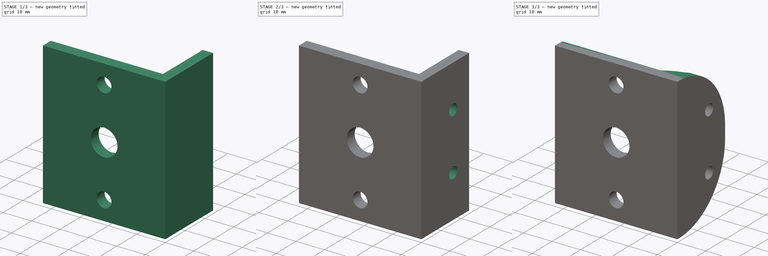
[diagram: build sequence overview — one tinted view per stage of 3, left to right]
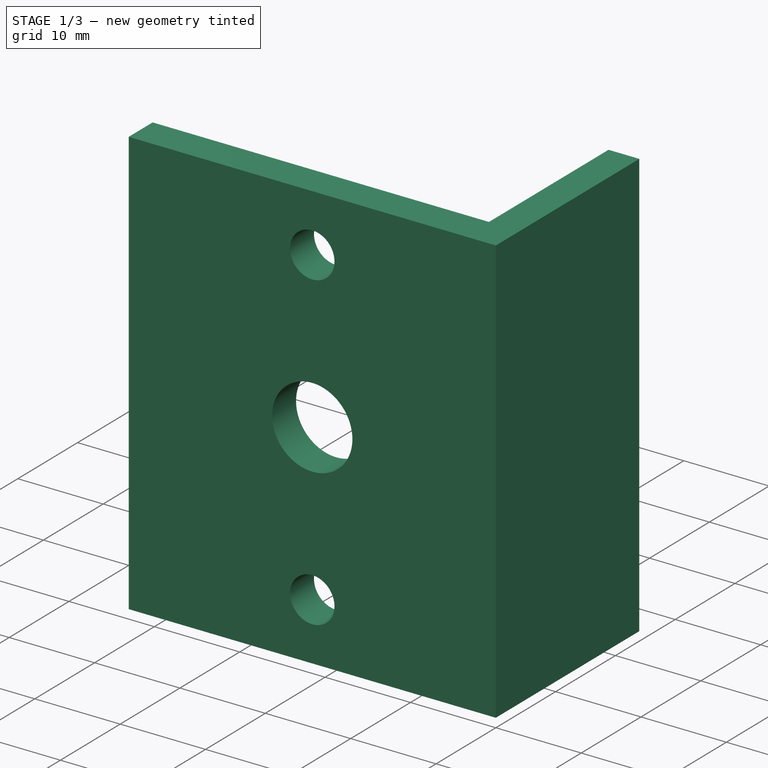
[diagram: stage 1 of 3 — iso view after this stage's code; geometry added in this stage tinted green]
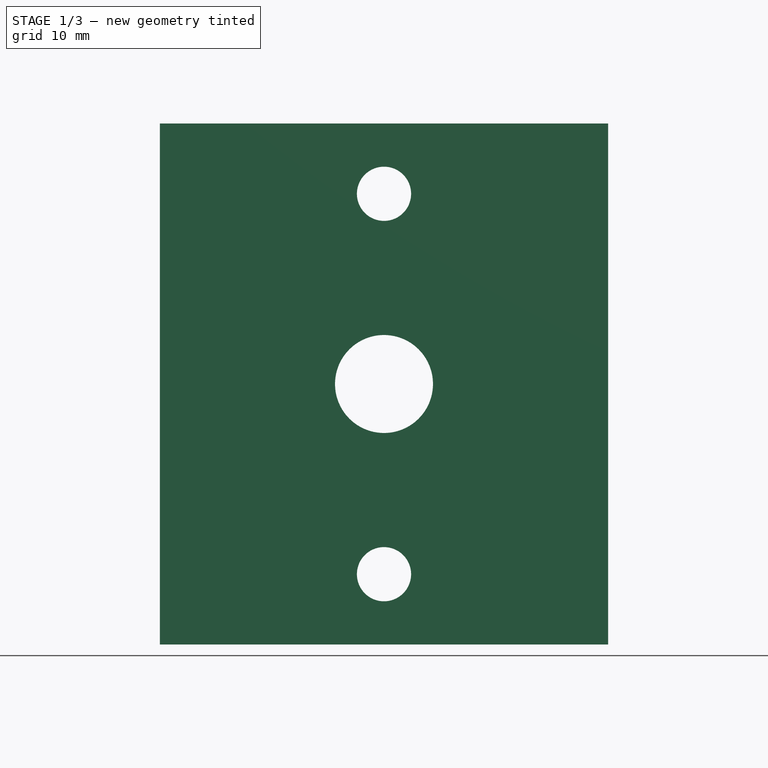
[diagram: stage 1 of 3 — front view after this stage's code; geometry added in this stage tinted green]
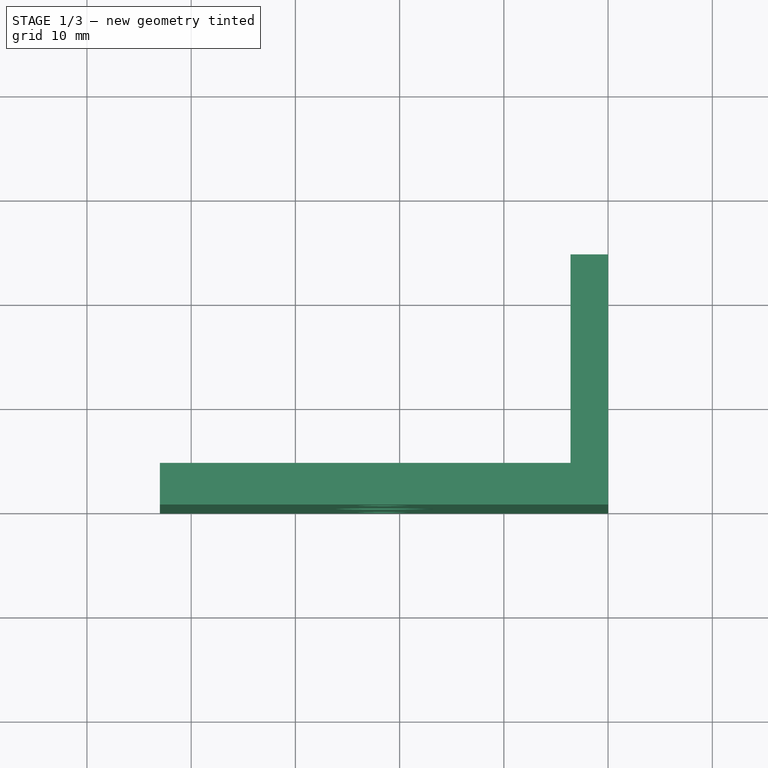
[diagram: stage 1 of 3 — top view after this stage's code; geometry added in this stage tinted green]
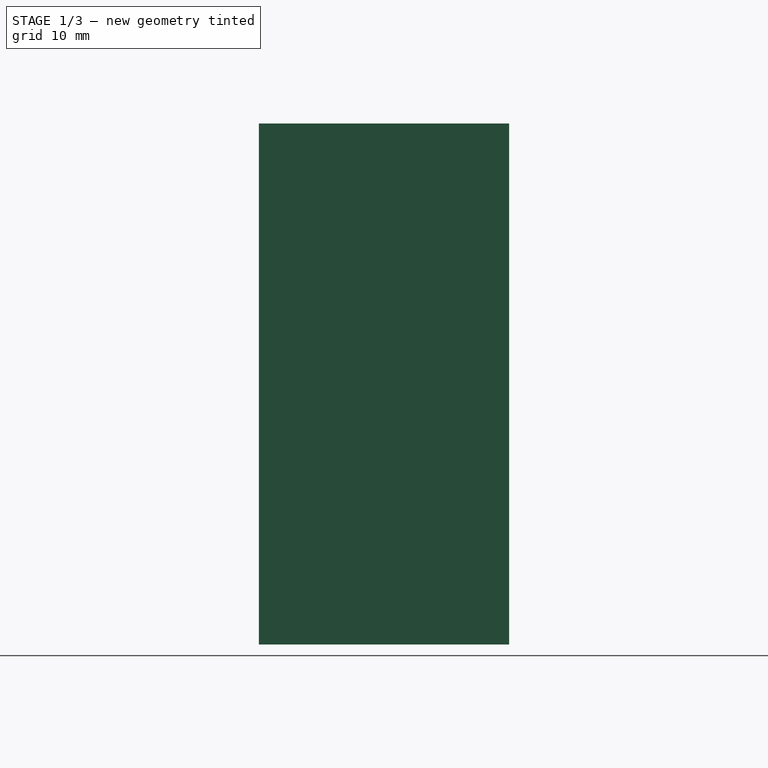
[diagram: stage 1 of 3 — right view after this stage's code; geometry added in this stage tinted green]
FCSTD DOCUMENT  (FreeCAD 0.16R6706 (Git))
Label: Suporte Mancal Lateral 
License: All rights reserved
LicenseURL: http://en.wikipedia.org/wiki/All_rights_reserved
objects: Sketcher::SketchObject×3, PartDesign::Pocket×2, PartDesign::Pad×1, PartDesign::Chamfer×1, PartDesign::Fillet×1
note: 11 computed .brp shape members not serialized (recipe doc carries the construction recipe); baked Part::Feature solids carry a one-line shape summary decoded from their .brp

FEATURE [Sketcher::SketchObject] Sketch003  label="sk Lateral"
  sketch-geometry (6):
    g0: LineSegment StartX=-43 StartY=4 StartZ=0 EndX=-3.6 EndY=4 EndZ=0
    g1: LineSegment StartX=-3.6 StartY=4 StartZ=0 EndX=-3.6 EndY=24 EndZ=0
    g2: LineSegment StartX=-3.6 StartY=24 StartZ=0 EndX=0 EndY=24 EndZ=0
    g3: LineSegment StartX=0 StartY=24 StartZ=0 EndX=0 EndY=0 EndZ=0
    g4: LineSegment StartX=0 StartY=0 StartZ=0 EndX=-43 EndY=0 EndZ=0
    g5: LineSegment StartX=-43 StartY=0 StartZ=0 EndX=-43 EndY=4 EndZ=0
  constraints (17):
    c: Coincident(g0,g1)
    c: Coincident(g1,g2)
    c: Coincident(g2,g3)
    c: Coincident(g3,g4)
    c: Coincident(g4,g5)
    c: Coincident(g0,g5)
    c: Horizontal(g0)
    c: Horizontal(g4)
    c: Horizontal(g2)
    c: Vertical(g3)
    c: Vertical(g1)
    c: Vertical(g5)
    c: DistanceX(g4,g4) = 43
    c: DistanceX(g2,g2) = 3.6
    c: DistanceY(g5,g5) = 4
    c: Coincident(g-1,g3)
    c: DistanceY(g1,g1) = 20
FEATURE [PartDesign::Pad] Pad003
  Length = 50
  Length2 = 100
  Sketch = -> Sketch003
  Type = 0
FEATURE [Sketcher::SketchObject] Sketch  label="sk Furos Mancal"
  ExternalGeometry = -> [Pad003]
  Placement = pos=(0,0,0) rot=(1,0,0;1.5708rad)
  Support = -> Pad003 [Face5]
  sketch-geometry (4):
    g0: LineSegment [constr] StartX=-21.5 StartY=6.75 StartZ=0 EndX=-21.5 EndY=43.25 EndZ=0
    g1: Circle CenterX=-21.5 CenterY=43.25 CenterZ=0 NormalX=0 NormalY=0 NormalZ=1 Radius=2.6
    g2: Circle CenterX=-21.5 CenterY=6.75 CenterZ=0 NormalX=0 NormalY=0 NormalZ=1 Radius=2.6
    g3: Circle CenterX=-21.5 CenterY=25 CenterZ=0 NormalX=0 NormalY=0 NormalZ=1 Radius=4.7
  constraints (9):
    c: Distance(g0) = 36.5
    c: Radius(g1) = 2.6
    c: Equal(g1,g2) = 2.6
    c: Coincident(g1,g0)
    c: Coincident(g2,g0)
    c: Radius(g3) = 4.7
    c: Symmetric(g0,g0,g3)
    c: Symmetric(g-3,g-4,g3)
    c: Vertical(g0)
FEATURE [PartDesign::Pocket] Pocket
  Length = 5
  Sketch = -> Sketch
  Type = 2
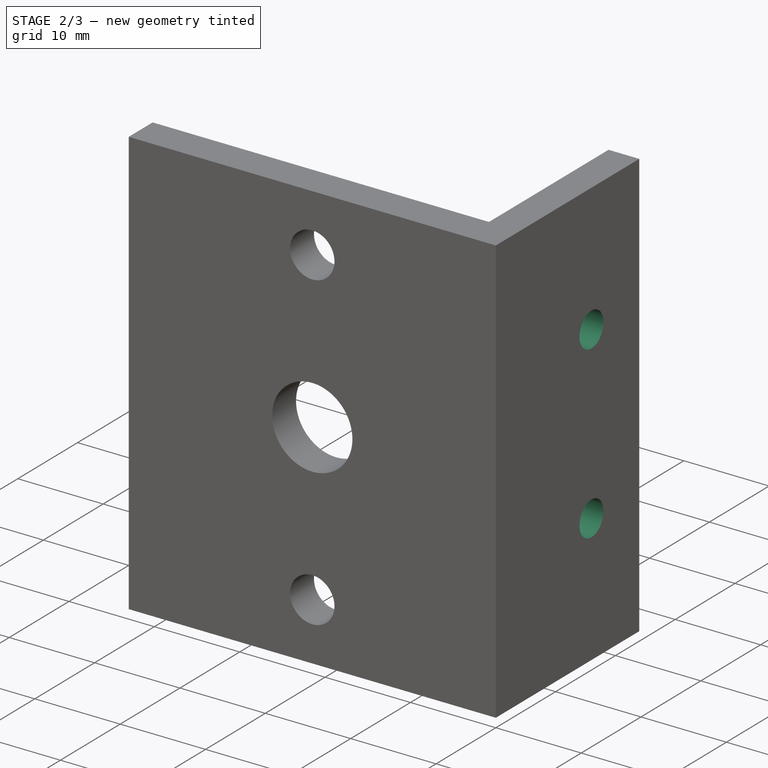
[diagram: stage 2 of 3 — iso view after this stage's code; geometry added in this stage tinted green]
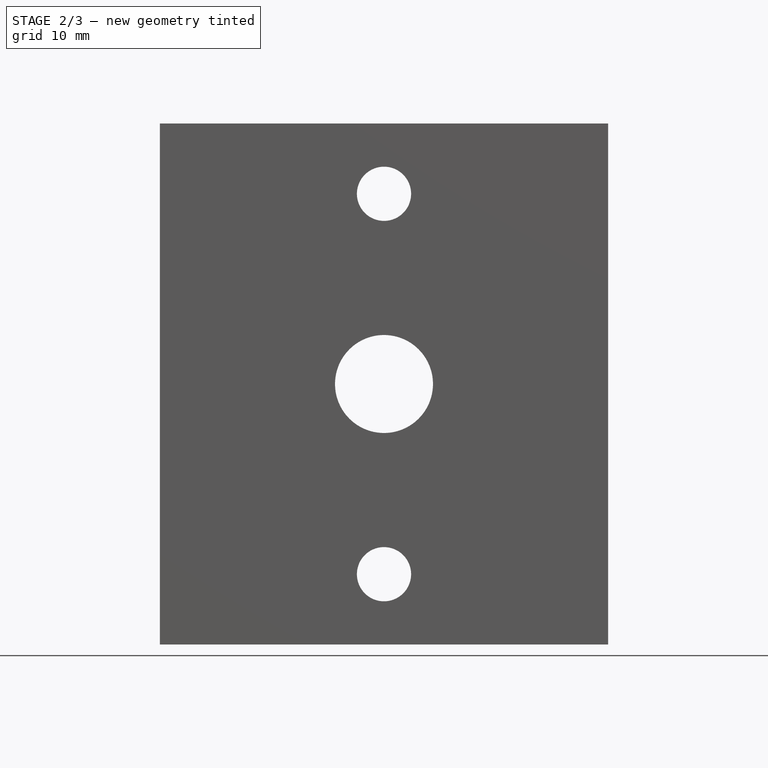
[diagram: stage 2 of 3 — front view after this stage's code; geometry added in this stage tinted green]
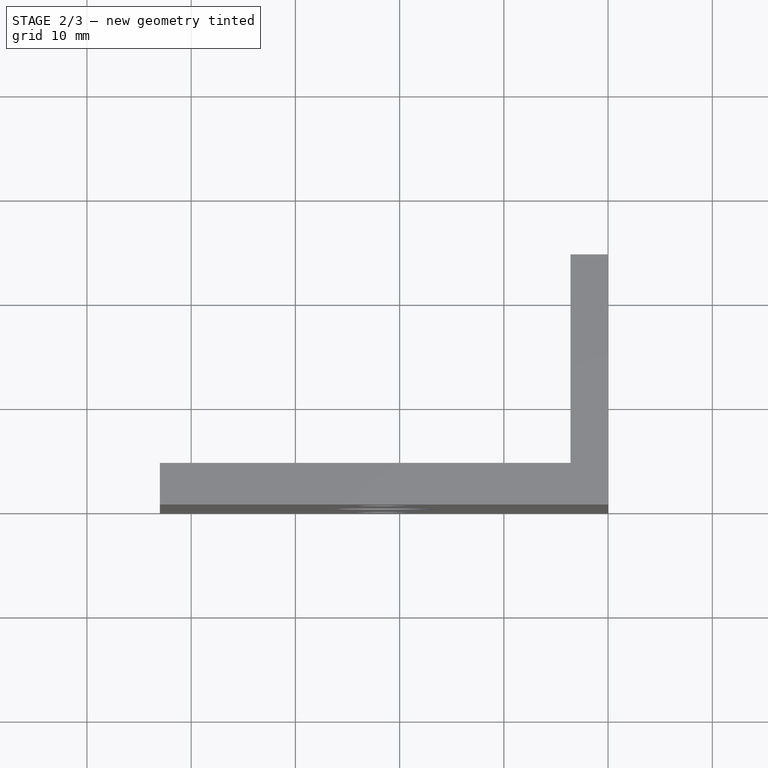
[diagram: stage 2 of 3 — top view after this stage's code; geometry added in this stage tinted green]
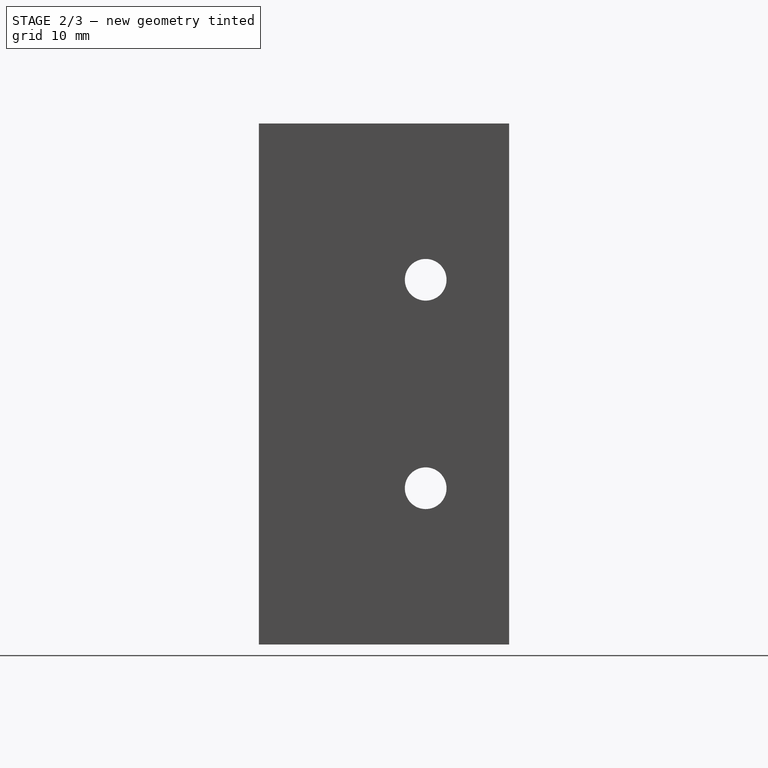
[diagram: stage 2 of 3 — right view after this stage's code; geometry added in this stage tinted green]
FEATURE [Sketcher::SketchObject] Sketch005  label="sk Furos Fixacao"
  ExternalGeometry = -> [Pocket]
  Placement = pos=(0,0,0) rot=(0.57735,0.57735,0.57735;2.0944rad)
  Support = -> Pocket [Face11]
  sketch-geometry (4):
    g0: LineSegment [constr] StartX=16 StartY=35 StartZ=0 EndX=16 EndY=15 EndZ=0
    g1: Circle CenterX=16 CenterY=35 CenterZ=0 NormalX=0 NormalY=0 NormalZ=1 Radius=2
    g2: Circle CenterX=16 CenterY=15 CenterZ=0 NormalX=0 NormalY=0 NormalZ=1 Radius=2
    g3: LineSegment [constr] StartX=16 StartY=25 StartZ=0 EndX=24 EndY=25 EndZ=0
  constraints (7):
    c: DistanceY(g0,g0) = 20
    c: Horizontal(g3)
    c: DistanceX(g3,g3) = 8
    c: Symmetric(g-5,g-5,g3)
    c: Symmetric(g0,g0,g3)
    c: Coincident(g0,g2)
    c: Coincident(g0,g1)
FEATURE [PartDesign::Pocket] Pocket001
  Length = 5
  Sketch = -> Sketch005
  Type = 2
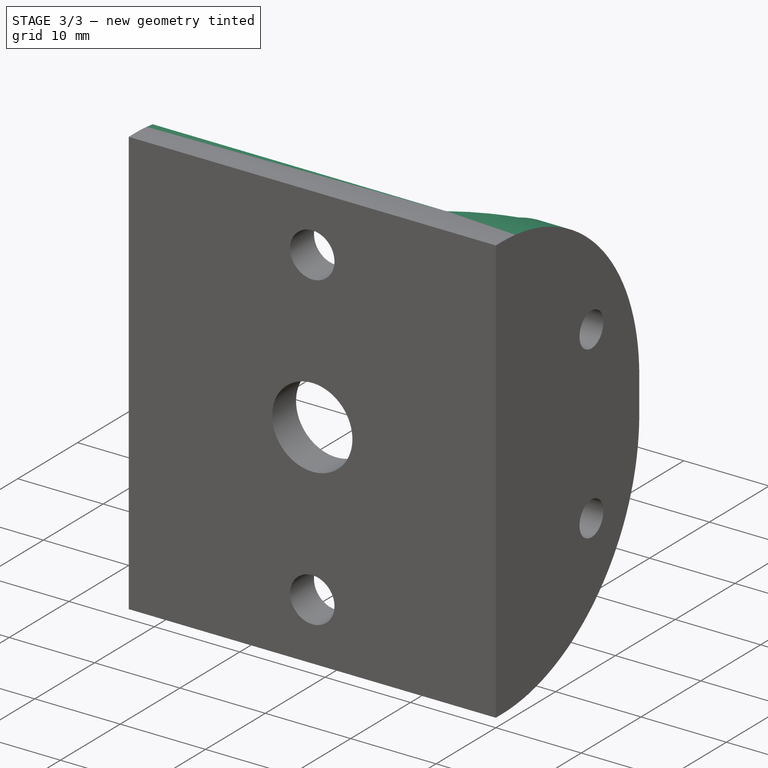
[diagram: stage 3 of 3 — iso view after this stage's code; geometry added in this stage tinted green]
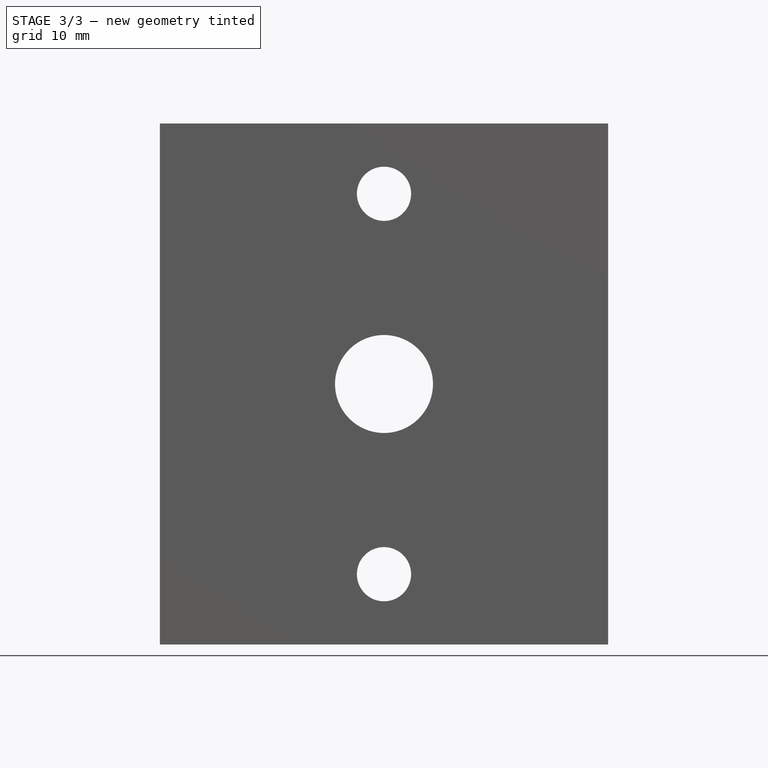
[diagram: stage 3 of 3 — front view after this stage's code; geometry added in this stage tinted green]
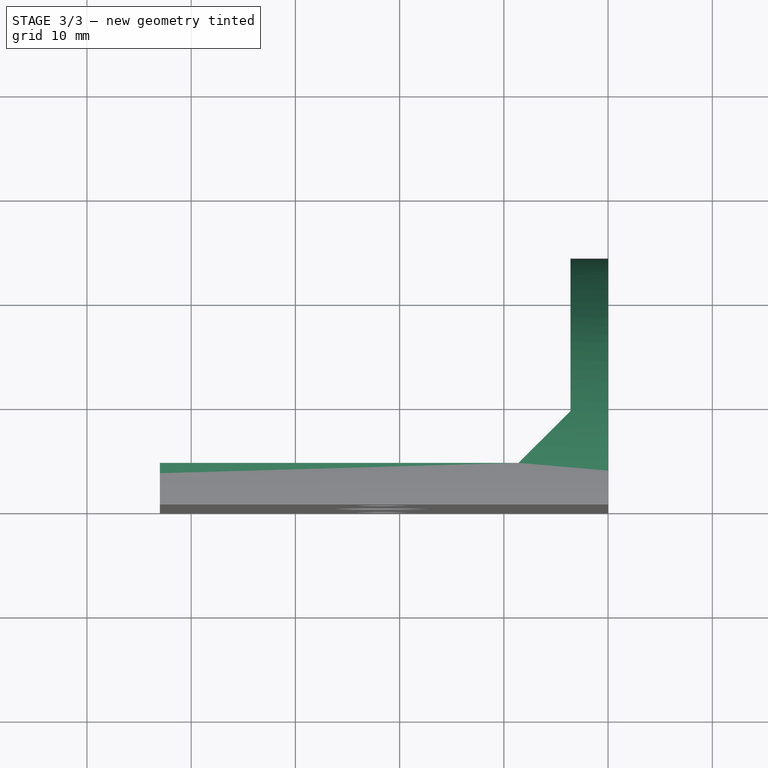
[diagram: stage 3 of 3 — top view after this stage's code; geometry added in this stage tinted green]
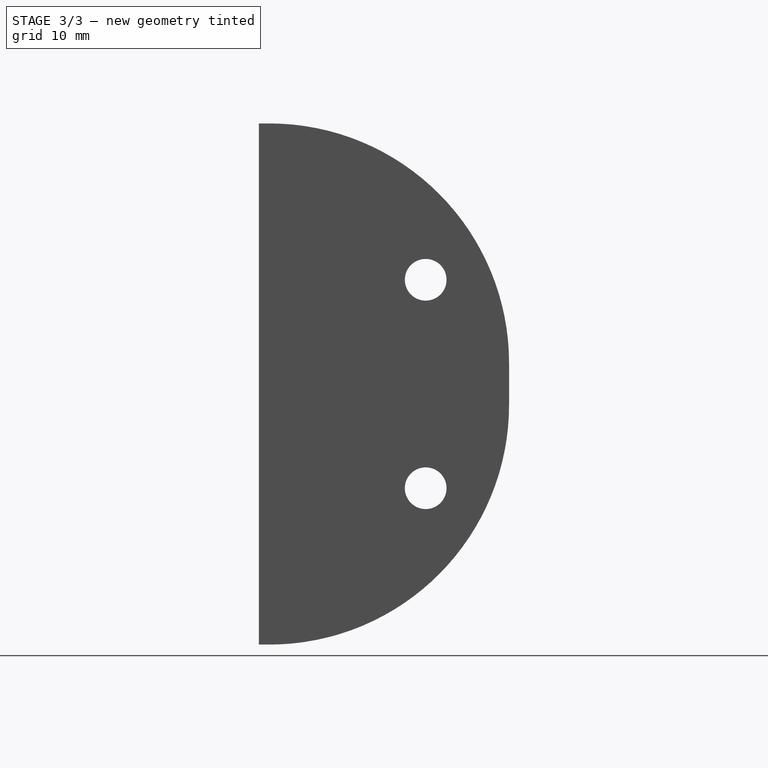
[diagram: stage 3 of 3 — right view after this stage's code; geometry added in this stage tinted green]
FEATURE [PartDesign::Chamfer] Chamfer
  Base = -> Pocket001 [Edge4]
  Size = 5
FEATURE [PartDesign::Fillet] Fillet
  Base = -> Chamfer [Edge12,Edge20]
  Radius = 23
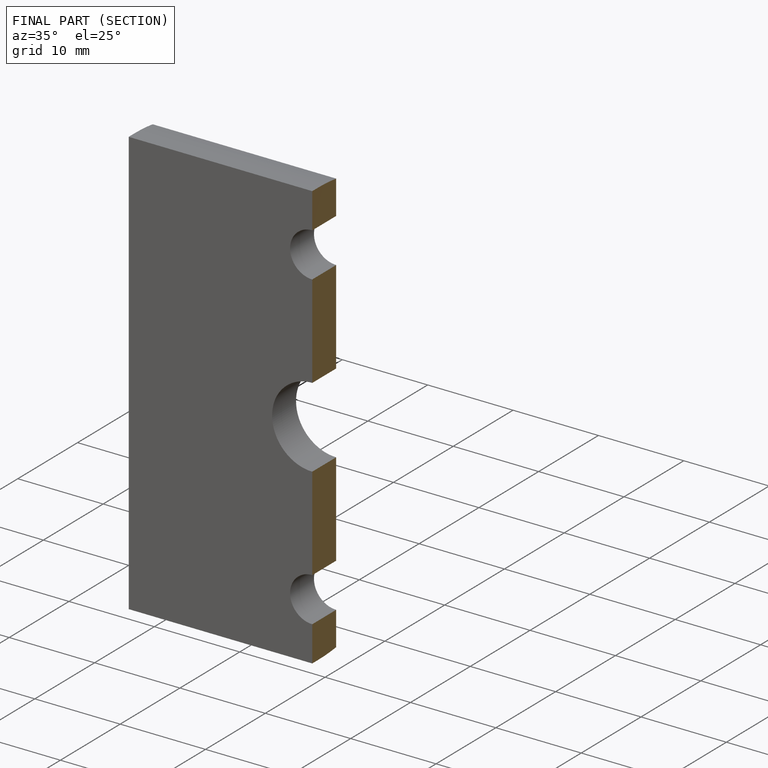
[diagram: finished part — half-section view (interior)]
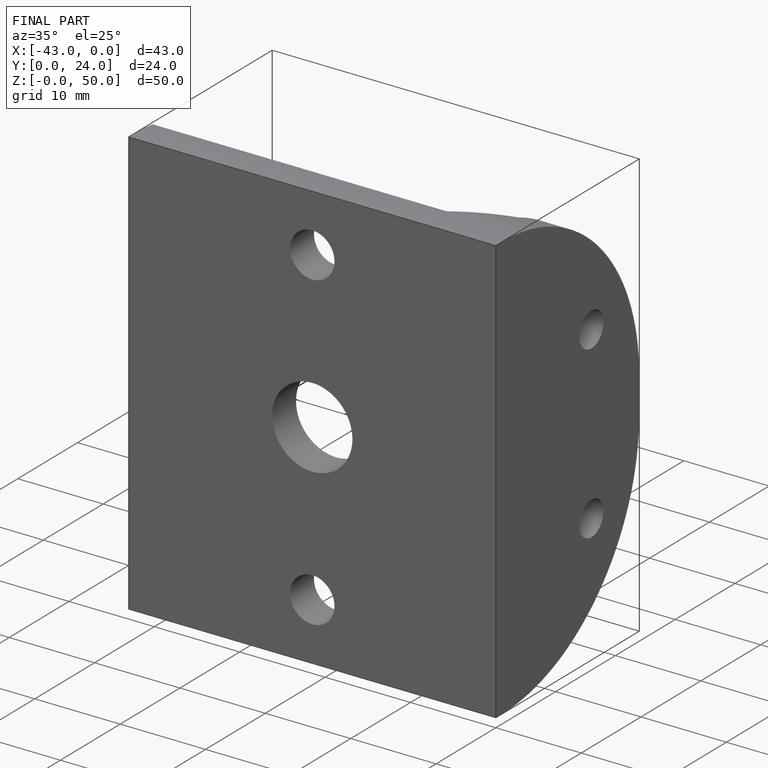
[diagram: finished part — iso view with bounding-box wireframe]
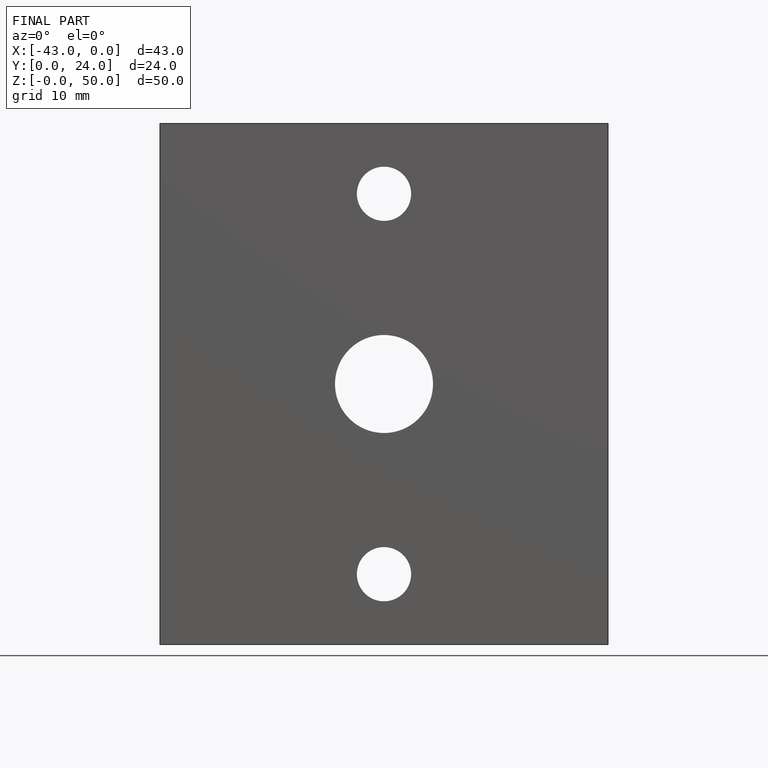
[diagram: finished part — front view with bounding-box wireframe]
